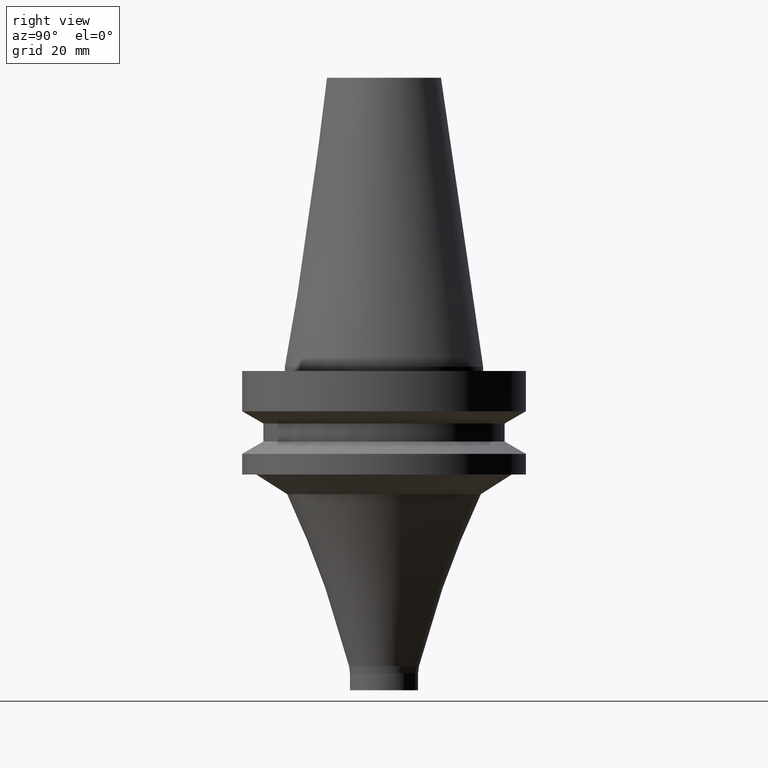
[diagram: clean part render]
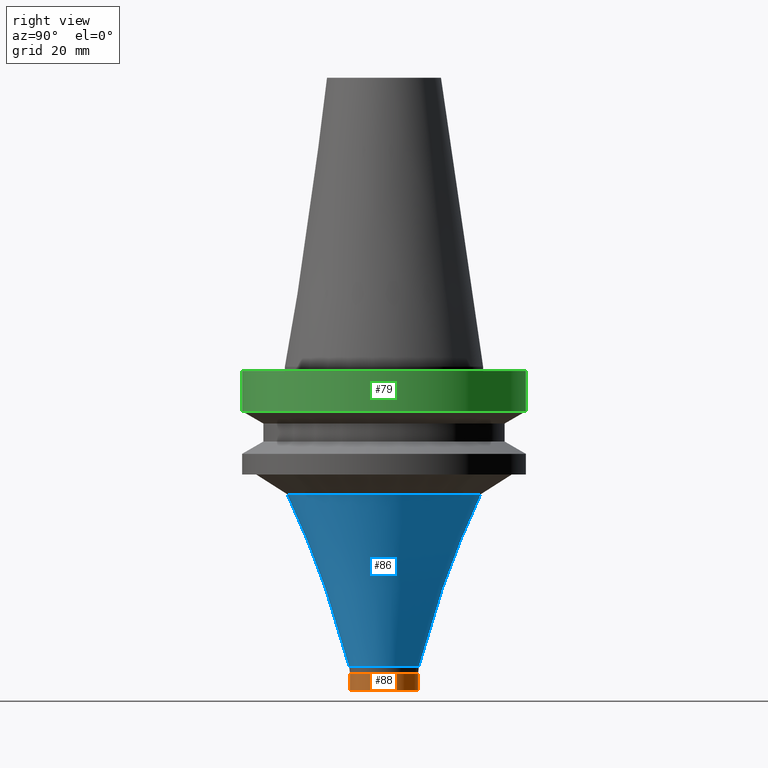
[diagram: same view with three faces highlighted in distinct colors, each labeled with its STEP entity id]
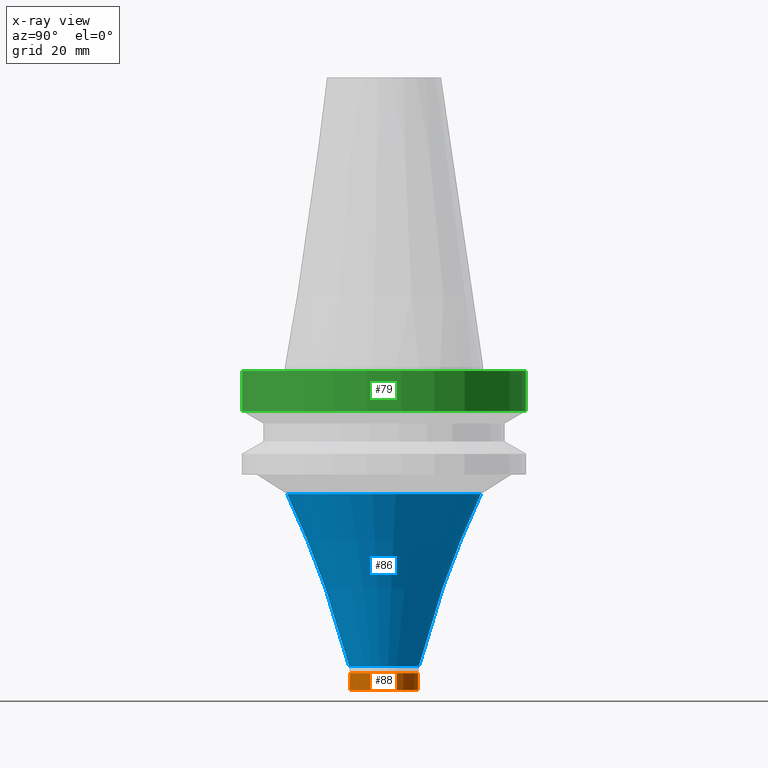
[diagram: x-ray of the same camera — body ghosted, the three highlighted faces saturated]
A machine part, right view with three faces highlighted in distinct colors.
The next image is the same camera in x-ray (body ghosted, the three faces saturated) — at least one of them is partly hidden behind the body in this view.
Their STEP definitions:

[orange] entity #88 — the highlighted cylindrical surface (bore or boss wall) has radius 12 mm, axis along (-0, -0, 1).
#88=ADVANCED_FACE('',(#129,#130),#131,.T.);
#129=FACE_BOUND('',#172,.T.);
#130=FACE_BOUND('',#173,.T.);
#131=CYLINDRICAL_SURFACE('',#174,11.9999999999999);
#172=EDGE_LOOP('',(#241));
#173=EDGE_LOOP('',(#242));
#174=AXIS2_PLACEMENT_3D('',#243,#244,#245);
#241=ORIENTED_EDGE('',*,*,#263,.F.);
#242=ORIENTED_EDGE('',*,*,#262,.T.);
#243=CARTESIAN_POINT('',(6.79678016858344E-015,1.1993234067263E-014,-110.999843764188));
#244=DIRECTION('',(-6.12323399573676E-017,-4.47533550436228E-016,1.0));
#245=DIRECTION('',(-3.22306792334079E-032,1.0,4.47533550436228E-016));
#262=EDGE_CURVE('',#288,#288,#289,.T.);
#263=EDGE_CURVE('',#290,#290,#291,.T.);
#288=VERTEX_POINT('',#316);
#289=CIRCLE('',#317,11.9999999999997);
#290=VERTEX_POINT('',#318);
#291=CIRCLE('',#319,12.0000000000001);
#316=CARTESIAN_POINT('',(6.61307358194808E-015,11.9999999999997,-107.999687527087));
#317=AXIS2_PLACEMENT_3D('',#356,#357,#358);
#318=CARTESIAN_POINT('',(6.98048675521879E-015,12.0000000000002,-114.000000001288));
#319=AXIS2_PLACEMENT_3D('',#359,#360,#361);
#356=CARTESIAN_POINT('',(6.61307358194808E-015,1.065056349461E-014,-107.999687527087));
#357=DIRECTION('',(6.12323399573676E-017,4.47533550436228E-016,-1.0));
#358=DIRECTION('',(-3.22306792334079E-032,1.0,4.47533550436228E-016));
#359=CARTESIAN_POINT('',(6.98048675521879E-015,1.3335904639916E-014,-114.000000001288));
#360=DIRECTION('',(6.12323399573677E-017,4.47533550436228E-016,-1.0));
#361=DIRECTION('',(-3.22306792334079E-032,1.0,4.47533550436228E-016));

[blue] entity #86 — the highlighted toroidal blend (fillet) surface has major radius 351.134 mm and minor (blend) radius 350 mm.
#86=ADVANCED_FACE('',(#123,#124),#125,.F.);
#123=FACE_BOUND('',#166,.T.);
#124=FACE_BOUND('',#167,.T.);
#125=TOROIDAL_SURFACE('',#168,351.133910259697,350.0);
#166=EDGE_LOOP('',(#231));
#167=EDGE_LOOP('',(#232));
#168=AXIS2_PLACEMENT_3D('',#233,#234,#235);
#231=ORIENTED_EDGE('',*,*,#261,.F.);
#232=ORIENTED_EDGE('',*,*,#260,.T.);
#233=CARTESIAN_POINT('',(1.18343179467804E-014,2.36686358935608E-014,-193.269078970686));
#234=DIRECTION('',(6.12323399573677E-017,4.47533550436228E-016,-1.0));
#235=DIRECTION('',(-1.0,-4.82715273076902E-033,-6.12323399573677E-017));
#260=EDGE_CURVE('',#284,#284,#285,.T.);
#261=EDGE_CURVE('',#286,#286,#287,.T.);
#284=VERTEX_POINT('',#312);
#285=CIRCLE('',#313,34.1313420266149);
#286=VERTEX_POINT('',#314);
#287=CIRCLE('',#315,12.3195908747145);
#312=CARTESIAN_POINT('',(2.75015995501349E-015,34.1313420266149,-44.9135204848984));
#313=AXIS2_PLACEMENT_3D('',#350,#351,#352);
#314=CARTESIAN_POINT('',(6.45950757121766E-015,12.3195908747145,-105.491764249333));
#315=AXIS2_PLACEMENT_3D('',#353,#354,#355);
#350=CARTESIAN_POINT('',(2.7501599550135E-015,-1.75826128251937E-014,-44.9135204848984));
#351=DIRECTION('',(6.12323399573677E-017,4.47533550436228E-016,-1.0));
#352=DIRECTION('',(-3.22306792334079E-032,1.0,4.47533550436228E-016));
#353=CARTESIAN_POINT('',(6.45950757121766E-015,9.52818368589523E-015,-105.491764249333));
#354=DIRECTION('',(6.12323399573677E-017,4.47533550436228E-016,-1.0));
#355=DIRECTION('',(-3.22306792334079E-032,1.0,4.47533550436228E-016));

[green] entity #79 — the highlighted cylindrical surface (bore or boss wall) has radius 50 mm, axis along (-0, -0, 1).
#79=ADVANCED_FACE('',(#102,#103),#104,.T.);
#102=FACE_BOUND('',#145,.T.);
#103=FACE_BOUND('',#146,.T.);
#104=CYLINDRICAL_SURFACE('',#147,50.0);
#145=EDGE_LOOP('',(#196));
#146=EDGE_LOOP('',(#197));
#147=AXIS2_PLACEMENT_3D('',#198,#199,#200);
#196=ORIENTED_EDGE('',*,*,#254,.F.);
#197=ORIENTED_EDGE('',*,*,#253,.T.);
#198=CARTESIAN_POINT('',(5.26598123633362E-016,-3.38341315766389E-014,-8.59999999999999));
#199=DIRECTION('',(-6.12323399573676E-017,-4.47533550436228E-016,1.0));
#200=DIRECTION('',(-3.22306792334079E-032,1.0,4.47533550436228E-016));
#253=EDGE_CURVE('',#270,#270,#271,.T.);
#254=EDGE_CURVE('',#272,#272,#273,.T.);
#270=VERTEX_POINT('',#298);
#271=CIRCLE('',#299,50.0);
#272=VERTEX_POINT('',#300);
#273=CIRCLE('',#301,50.0);
#298=CARTESIAN_POINT('',(9.18485099360471E-017,50.0,-1.49999999999993));
#299=AXIS2_PLACEMENT_3D('',#329,#330,#331);
#300=CARTESIAN_POINT('',(9.61347737330673E-016,49.9999999999999,-15.7));
#301=AXIS2_PLACEMENT_3D('',#332,#333,#334);
#329=CARTESIAN_POINT('',(9.18485099360489E-017,-3.70116197847362E-014,-1.49999999999996));
#330=DIRECTION('',(6.12323399573677E-017,4.47533550436228E-016,-1.0));
#331=DIRECTION('',(-3.22306792334079E-032,1.0,4.47533550436228E-016));
#332=CARTESIAN_POINT('',(9.61347737330675E-016,-3.06566433685417E-014,-15.7));
#333=DIRECTION('',(6.12323399573677E-017,4.47533550436228E-016,-1.0));
#334=DIRECTION('',(-3.22306792334079E-032,1.0,4.47533550436228E-016));